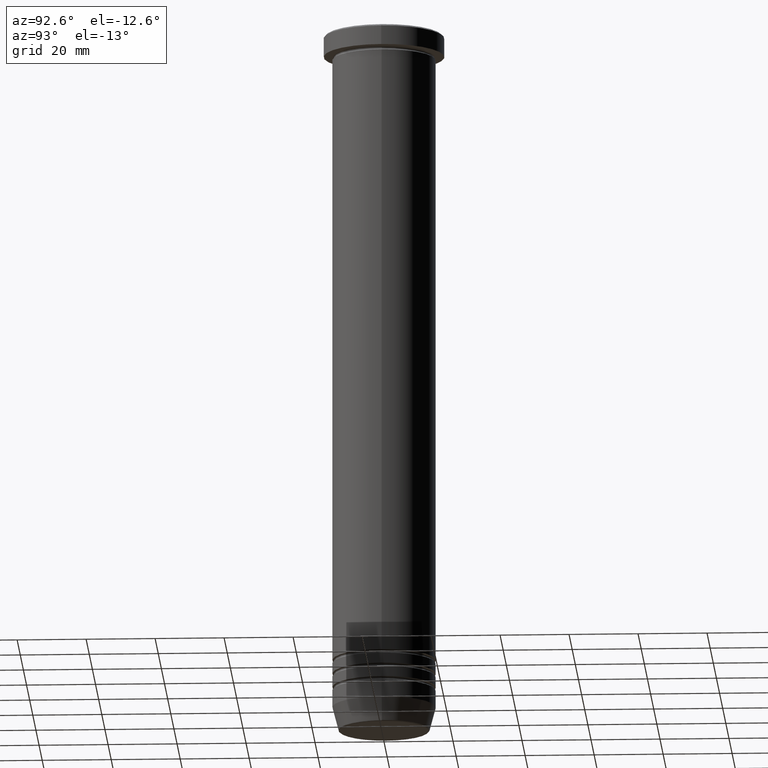
[diagram: clean part render]
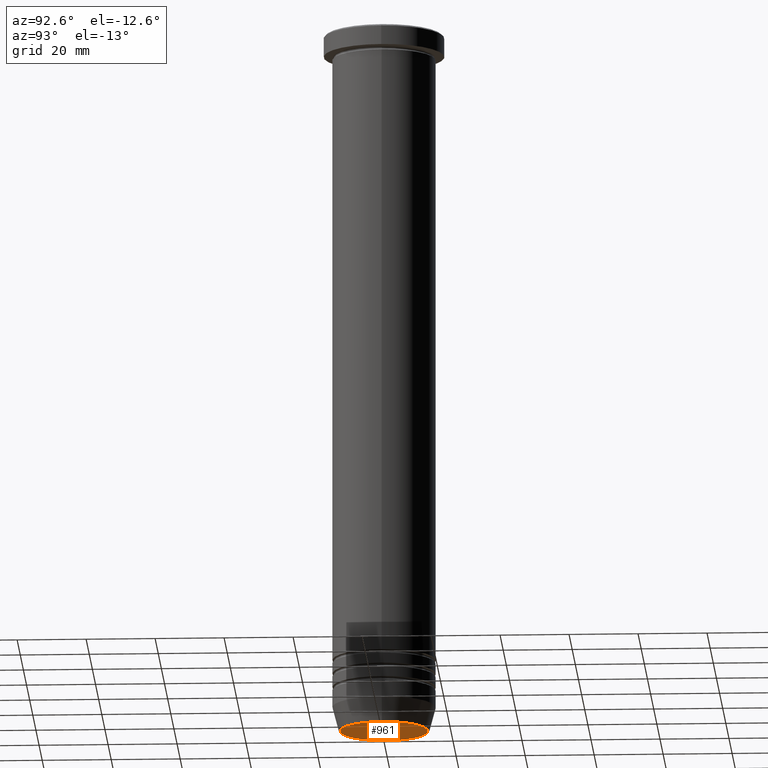
[diagram: same view with one face highlighted and labeled with its STEP entity id]
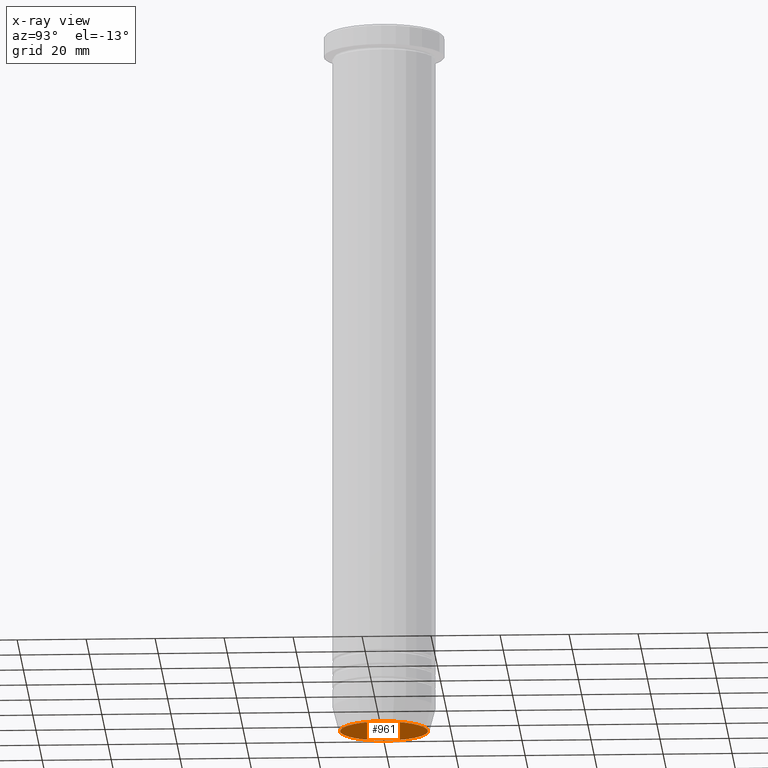
[diagram: x-ray of the same camera — body ghosted, the highlighted face saturated]
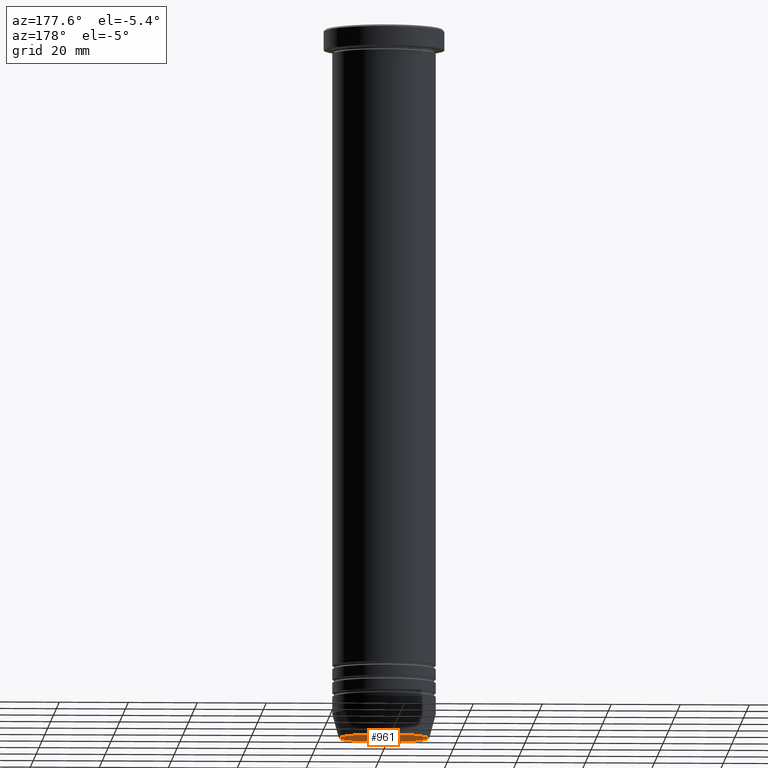
[diagram: same view with one face highlighted and labeled with its STEP entity id]
A machine part, auxiliary view. The second image highlights one B-rep face of the part: STEP entity #961.
The next image is the same camera in x-ray: the body ghosted, the highlighted face saturated — about 0% of this face is hidden behind the body in this view.
A second angle (auxiliary view) of the same face is appended — the face is thin or edge-on in the first view.
In plain terms, the highlighted planar face has unit normal (0, -0, 1).
Its self-contained STEP definition (entity closure, byte-faithful):
#56 = DIRECTION ( 'NONE',  ( 1.000000000000000000, 0.000000000000000000, 0.000000000000000000 ) ) ;
#89 = CIRCLE ( 'NONE', #731, 12.74069215899266361 ) ;
#174 = AXIS2_PLACEMENT_3D ( 'NONE', #976, #885, #622 ) ;
#225 = ORIENTED_EDGE ( 'NONE', *, *, #411, .T. ) ;
#329 = FACE_OUTER_BOUND ( 'NONE', #855, .T. ) ;
#411 = EDGE_CURVE ( 'NONE', #483, #443, #89, .T. ) ;
#443 = VERTEX_POINT ( 'NONE', #510 ) ;
#483 = VERTEX_POINT ( 'NONE', #1081 ) ;
#510 = CARTESIAN_POINT ( 'NONE',  ( -12.74069215899266361, 1.589857736427681626E-15, -206.0000000000000284 ) ) ;
#516 = ORIENTED_EDGE ( 'NONE', *, *, #846, .T. ) ;
#610 = CIRCLE ( 'NONE', #174, 12.74069215899266361 ) ;
#622 = DIRECTION ( 'NONE',  ( 1.000000000000000000, 0.000000000000000000, 0.000000000000000000 ) ) ;
#722 = DIRECTION ( 'NONE',  ( 1.000000000000000000, 0.000000000000000000, 0.000000000000000000 ) ) ;
#731 = AXIS2_PLACEMENT_3D ( 'NONE', #743, #1096, #722 ) ;
#743 = CARTESIAN_POINT ( 'NONE',  ( 0.000000000000000000, 0.000000000000000000, -206.0000000000000284 ) ) ;
#846 = EDGE_CURVE ( 'NONE', #443, #483, #610, .T. ) ;
#854 = DIRECTION ( 'NONE',  ( 0.000000000000000000, -0.000000000000000000, 1.000000000000000000 ) ) ;
#855 = EDGE_LOOP ( 'NONE', ( #225, #516 ) ) ;
#885 = DIRECTION ( 'NONE',  ( 0.000000000000000000, 0.000000000000000000, -1.000000000000000000 ) ) ;
#934 = CARTESIAN_POINT ( 'NONE',  ( 0.000000000000000000, 1.794107560750872760E-14, -206.0000000000000284 ) ) ;
#940 = PLANE ( 'NONE',  #1006 ) ;
#961 = ADVANCED_FACE ( 'NONE', ( #329 ), #940, .F. ) ;
#976 = CARTESIAN_POINT ( 'NONE',  ( 0.000000000000000000, 0.000000000000000000, -206.0000000000000284 ) ) ;
#1006 = AXIS2_PLACEMENT_3D ( 'NONE', #934, #854, #56 ) ;
#1081 = CARTESIAN_POINT ( 'NONE',  ( 12.74069215899266361, 0.000000000000000000, -206.0000000000000284 ) ) ;
#1096 = DIRECTION ( 'NONE',  ( 0.000000000000000000, 0.000000000000000000, -1.000000000000000000 ) ) ;